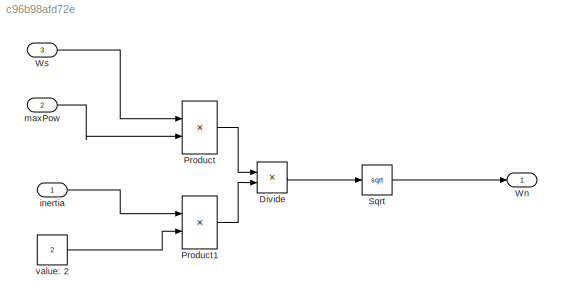
MODEL slx_c96b98afd72e
KIND model
BLOCK [Product] Divide
  InputSameDT = off
  Inputs = */
  OutDataTypeStr = Inherit: Inherit via internal rule
  Ports = [2, 1]
  RndMeth = Floor
  SaturateOnIntegerOverflow = off
BLOCK [Product] Product
  InputSameDT = off
  OutDataTypeStr = Inherit: Inherit via internal rule
  Ports = [2, 1]
  RndMeth = Floor
  SaturateOnIntegerOverflow = off
BLOCK [Product] Product1
  InputSameDT = off
  OutDataTypeStr = Inherit: Inherit via internal rule
  Ports = [2, 1]
  RndMeth = Floor
  SaturateOnIntegerOverflow = off
BLOCK [Sqrt] Sqrt
BLOCK [Outport] Wn
  IconDisplay = Port number
BLOCK [Inport] Ws
  IconDisplay = Port number
  Port = 3
BLOCK [Inport] inertia
  IconDisplay = Port number
BLOCK [Inport] maxPow
  IconDisplay = Port number
  Port = 2
BLOCK [Constant] value: 2 
  Value = 2
LINE Divide:1 -> Sqrt:1
LINE Product1:1 -> Divide:2
LINE Product:1 -> Divide:1
LINE Sqrt:1 -> Wn:1
LINE Ws:1 -> Product:1
LINE inertia:1 -> Product1:1
LINE maxPow:1 -> Product:2
LINE value: 2 :1 -> Product1:2
